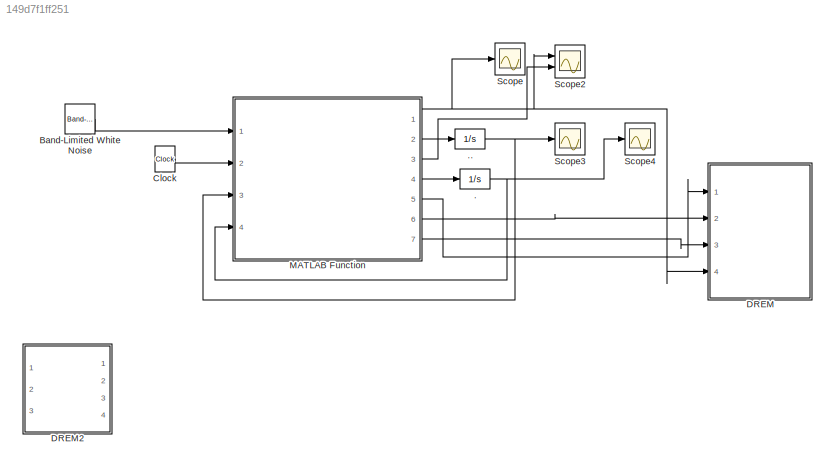
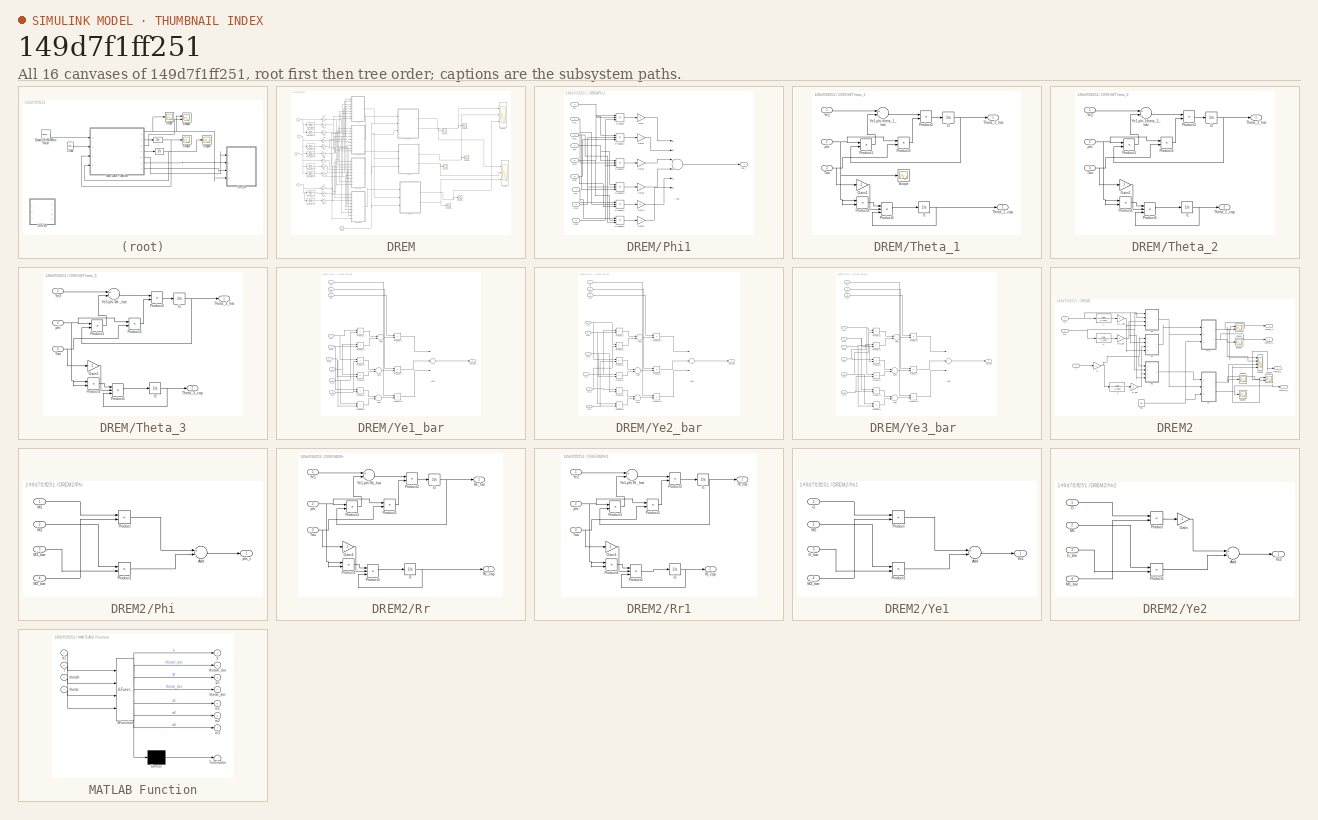
[diagram: thumbnail index - all 16 canvases of the model, root first then tree order]
MODEL slx_149d7f1ff251
KIND model
CONFIG AbsTol = auto
CONFIG EnableMultiTasking = off
CONFIG FixedStep = auto
CONFIG InitFcn = d1=1;\nd2=1;\nd3=3;\nd4=3;\ntau=1000000000000
CONFIG MaxStep = auto
CONFIG MinStep = auto
CONFIG RelTol = 1e-3
CONFIG SampleTimeConstraint = Unconstrained
CONFIG Solver = VariableStepAuto
CONFIG SolverName = VariableStepAuto
CONFIG StartTime = 0.0
CONFIG StopTime = 1000
BLOCK [Integrator] .
  InitialCondition = [1 2 3]
  Ports = [1, 1]
BLOCK [Integrator] ..
  Ports = [1, 1]
BLOCK [Reference] Band-Limited White Noise  REF=simulink/Sources/Band-Limited
White Noise
  Ports = [0, 1]
  SourceBlock = simulink/Sources/Band-Limited\nWhite Noise
  SourceType = Band-Limited White Noise.
BLOCK [Clock] Clock
  DisplayTime = on
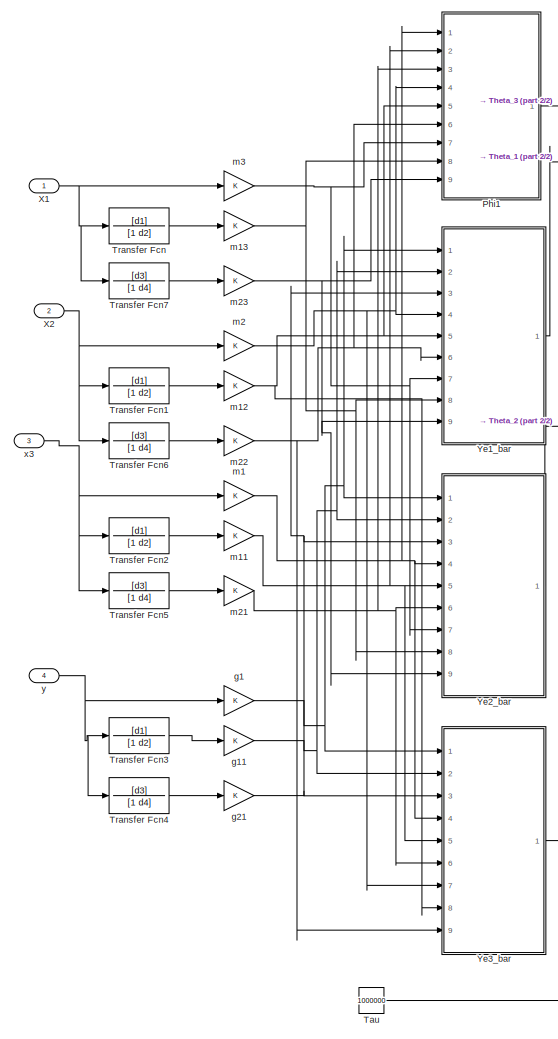
[diagram: DREM - part 1/2, left side, full height]
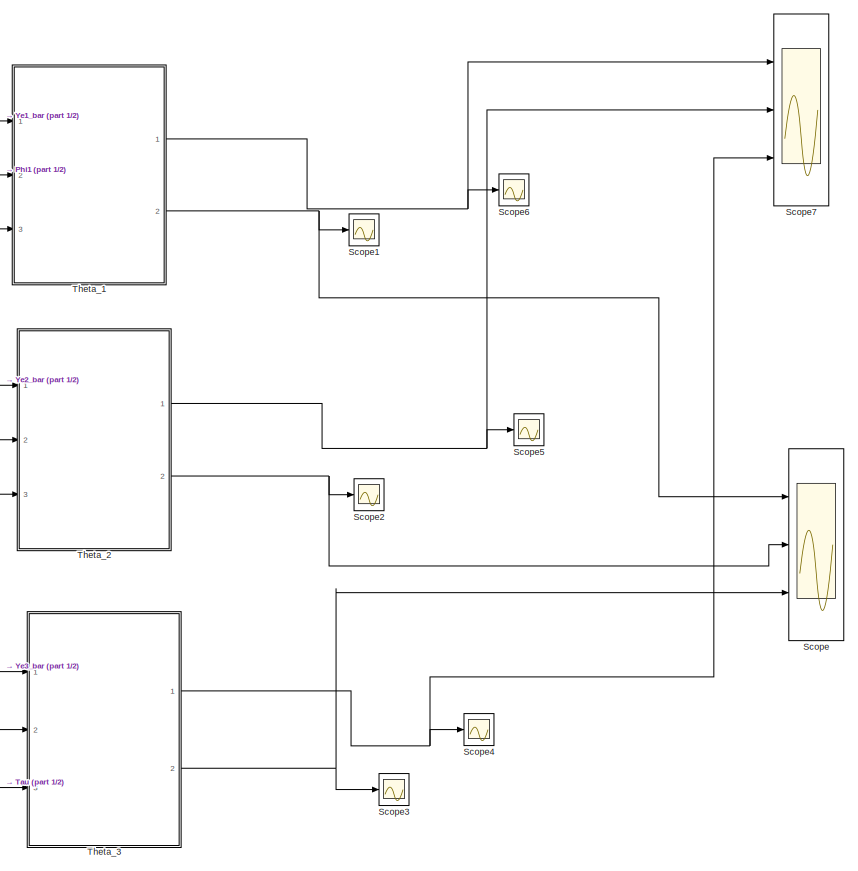
[diagram: DREM - part 2/2, right side, full height]
BLOCK [SubSystem] DREM
  Ports = [4]
  RequestExecContextInheritance = off
  Variant = off
BLOCK [SubSystem] DREM/Phi1
  Ports = [9, 1]
  RequestExecContextInheritance = off
  Variant = off
BLOCK [Sum] DREM/Phi1/Add
  InputSameDT = off
  Inputs = ++++++
  OutDataTypeStr = Inherit: Inherit via internal rule
  Ports = [6, 1]
  SaturateOnIntegerOverflow = off
BLOCK [Gain] DREM/Phi1/Gain
  OutDataTypeStr = Inherit: Inherit via internal rule
  ParamDataTypeStr = Inherit: Inherit via internal rule
  SaturateOnIntegerOverflow = off
BLOCK [Gain] DREM/Phi1/Gain1
  Gain = -1
  OutDataTypeStr = Inherit: Inherit via internal rule
  ParamDataTypeStr = Inherit: Inherit via internal rule
  SaturateOnIntegerOverflow = off
BLOCK [Gain] DREM/Phi1/Gain2
  Gain = -1
  OutDataTypeStr = Inherit: Inherit via internal rule
  ParamDataTypeStr = Inherit: Inherit via internal rule
  SaturateOnIntegerOverflow = off
BLOCK [Gain] DREM/Phi1/Gain3
  OutDataTypeStr = Inherit: Inherit via internal rule
  ParamDataTypeStr = Inherit: Inherit via internal rule
  SaturateOnIntegerOverflow = off
BLOCK [Gain] DREM/Phi1/Gain4
  OutDataTypeStr = Inherit: Inherit via internal rule
  ParamDataTypeStr = Inherit: Inherit via internal rule
  SaturateOnIntegerOverflow = off
BLOCK [Gain] DREM/Phi1/Gain5
  Gain = -1
  OutDataTypeStr = Inherit: Inherit via internal rule
  ParamDataTypeStr = Inherit: Inherit via internal rule
  SaturateOnIntegerOverflow = off
BLOCK [Product] DREM/Phi1/Product
  InputSameDT = off
  Inputs = 3
  OutDataTypeStr = Inherit: Inherit via internal rule
  Ports = [3, 1]
  RndMeth = Floor
  SaturateOnIntegerOverflow = off
BLOCK [Product] DREM/Phi1/Product1
  InputSameDT = off
  Inputs = 3
  OutDataTypeStr = Inherit: Inherit via internal rule
  Ports = [3, 1]
  RndMeth = Floor
  SaturateOnIntegerOverflow = off
BLOCK [Product] DREM/Phi1/Product2
  InputSameDT = off
  Inputs = 3
  OutDataTypeStr = Inherit: Inherit via internal rule
  Ports = [3, 1]
  RndMeth = Floor
  SaturateOnIntegerOverflow = off
BLOCK [Product] DREM/Phi1/Product3
  InputSameDT = off
  Inputs = 3
  OutDataTypeStr = Inherit: Inherit via internal rule
  Ports = [3, 1]
  RndMeth = Floor
  SaturateOnIntegerOverflow = off
BLOCK [Product] DREM/Phi1/Product4
  InputSameDT = off
  Inputs = 3
  OutDataTypeStr = Inherit: Inherit via internal rule
  Ports = [3, 1]
  RndMeth = Floor
  SaturateOnIntegerOverflow = off
BLOCK [Product] DREM/Phi1/Product5
  InputSameDT = off
  Inputs = 3
  OutDataTypeStr = Inherit: Inherit via internal rule
  Ports = [3, 1]
  RndMeth = Floor
  SaturateOnIntegerOverflow = off
BLOCK [Inport] DREM/Phi1/m1
  IconDisplay = Port number
BLOCK [Inport] DREM/Phi1/m11
  IconDisplay = Port number
  Port = 2
BLOCK [Inport] DREM/Phi1/m12
  IconDisplay = Port number
  Port = 5
BLOCK [Inport] DREM/Phi1/m13
  IconDisplay = Port number
  Port = 8
BLOCK [Inport] DREM/Phi1/m2
  IconDisplay = Port number
  Port = 4
BLOCK [Inport] DREM/Phi1/m21
  IconDisplay = Port number
  Port = 3
BLOCK [Inport] DREM/Phi1/m22
  IconDisplay = Port number
  Port = 6
BLOCK [Inport] DREM/Phi1/m23
  IconDisplay = Port number
  Port = 9
BLOCK [Inport] DREM/Phi1/m3
  IconDisplay = Port number
  Port = 7
BLOCK [Outport] DREM/Phi1/phi_t
  IconDisplay = Port number
BLOCK [Scope] DREM/Scope
  NumInputPorts = 3
  Ports = [3]
  ScopeSpecificationString = Simulink.scopes.TimeScopeBlockCfg('CurrentConfiguration', extmgr.ConfigurationSet(extmgr.Configuration('Core','General UI',true),extmgr.Configuration('Core','Source UI',true),extmgr.Configuration('Sources','WiredSimulink',true),extmgr.Configuration('Visuals','Time Domain',true,'SerializedDisplays',{struct('MinYLimReal','-1.25','MaxYLimReal','1.25','YLabelReal','','MinYLimMag','0.00000','MaxYLimMag...<+1433ch>
BLOCK [Scope] DREM/Scope1
  NumInputPorts = 1
  Ports = [1]
  ScopeSpecificationString = Simulink.scopes.TimeScopeBlockCfg('CurrentConfiguration', extmgr.ConfigurationSet(extmgr.Configuration('Core','General UI',true),extmgr.Configuration('Core','Source UI',true),extmgr.Configuration('Sources','WiredSimulink',true,'DataLoggingVariableName','ScopeData1'),extmgr.Configuration('Visuals','Time Domain',true,'SerializedDisplays',{struct('MinYLimReal','0.99999962','MaxYLimReal','1.00000004',...<+1490ch>
BLOCK [Scope] DREM/Scope2
  NumInputPorts = 1
  Ports = [1]
  ScopeSpecificationString = Simulink.scopes.TimeScopeBlockCfg('CurrentConfiguration', extmgr.ConfigurationSet(extmgr.Configuration('Core','General UI',true),extmgr.Configuration('Core','Source UI',true),extmgr.Configuration('Sources','WiredSimulink',true,'DataLoggingVariableName','ScopeData2'),extmgr.Configuration('Visuals','Time Domain',true,'SerializedDisplays',{struct('MinYLimReal','-1.00002','MaxYLimReal','-0.99985','YLa...<+1370ch>
BLOCK [Scope] DREM/Scope3
  NumInputPorts = 1
  Ports = [1]
  ScopeSpecificationString = Simulink.scopes.TimeScopeBlockCfg('CurrentConfiguration', extmgr.ConfigurationSet(extmgr.Configuration('Core','General UI',true),extmgr.Configuration('Core','Source UI',true),extmgr.Configuration('Sources','WiredSimulink',true,'DataLoggingVariableName','ScopeData3'),extmgr.Configuration('Visuals','Time Domain',true,'SerializedDisplays',{struct('MinYLimReal','-0.59753','MaxYLimReal','1.18275','YLab...<+1414ch>
BLOCK [Scope] DREM/Scope4
  NumInputPorts = 1
  Ports = [1]
  ScopeSpecificationString = Simulink.scopes.TimeScopeBlockCfg('CurrentConfiguration', extmgr.ConfigurationSet(extmgr.Configuration('Core','General UI',true),extmgr.Configuration('Core','Source UI',true),extmgr.Configuration('Sources','WiredSimulink',true,'DataLoggingVariableName','ScopeData1'),extmgr.Configuration('Visuals','Time Domain',true,'SerializedDisplays',{struct('MinYLimReal','-0.0625','MaxYLimReal','0.5625','YLabel...<+1482ch>
BLOCK [Scope] DREM/Scope5
  NumInputPorts = 1
  Ports = [1]
  ScopeSpecificationString = Simulink.scopes.TimeScopeBlockCfg('CurrentConfiguration', extmgr.ConfigurationSet(extmgr.Configuration('Core','General UI',true),extmgr.Configuration('Core','Source UI',true),extmgr.Configuration('Sources','WiredSimulink',true,'DataLoggingVariableName','ScopeData2'),extmgr.Configuration('Visuals','Time Domain',true,'SerializedDisplays',{struct('MinYLimReal','-1.1273','MaxYLimReal','0.12526','YLabe...<+1416ch>
BLOCK [Scope] DREM/Scope6
  NumInputPorts = 1
  Ports = [1]
  ScopeSpecificationString = Simulink.scopes.TimeScopeBlockCfg('CurrentConfiguration', extmgr.ConfigurationSet(extmgr.Configuration('Core','General UI',true),extmgr.Configuration('Core','Source UI',true),extmgr.Configuration('Sources','WiredSimulink',true,'DataLoggingVariableName','ScopeData3'),extmgr.Configuration('Visuals','Time Domain',true,'SerializedDisplays',{struct('MinYLimReal','-1.00000','MaxYLimReal','1.00000','YLab...<+1420ch>
BLOCK [Scope] DREM/Scope7
  NumInputPorts = 3
  Ports = [3]
  ScopeSpecificationString = Simulink.scopes.TimeScopeBlockCfg('CurrentConfiguration', extmgr.ConfigurationSet(extmgr.Configuration('Core','General UI',true),extmgr.Configuration('Core','Source UI',true),extmgr.Configuration('Sources','WiredSimulink',true,'DataLoggingVariableName','ScopeData1'),extmgr.Configuration('Visuals','Time Domain',true,'SerializedDisplays',{struct('MinYLimReal','-0.37549','MaxYLimReal','3.37938','YLab...<+1490ch>
BLOCK [Constant] DREM/Tau
  SampleTime = -1
  Value = 1000000
BLOCK [SubSystem] DREM/Theta_1
  Ports = [3, 2]
  RequestExecContextInheritance = off
  Variant = off
BLOCK [Gain] DREM/Theta_1/Gain1
  Gain = -1
  OutDataTypeStr = Inherit: Inherit via internal rule
  ParamDataTypeStr = Inherit: Inherit via internal rule
  SaturateOnIntegerOverflow = off
BLOCK [Integrator] DREM/Theta_1/I1
  InitialCondition = 1
  Ports = [1, 1]
BLOCK [Integrator] DREM/Theta_1/I2
  Ports = [1, 1]
BLOCK [Product] DREM/Theta_1/Product1
  InputSameDT = off
  OutDataTypeStr = Inherit: Inherit via internal rule
  Ports = [2, 1]
  RndMeth = Floor
  SaturateOnIntegerOverflow = off
BLOCK [Product] DREM/Theta_1/Product2
  InputSameDT = off
  OutDataTypeStr = Inherit: Inherit via internal rule
  Ports = [2, 1]
  RndMeth = Floor
  SaturateOnIntegerOverflow = off
BLOCK [Product] DREM/Theta_1/Product3
  InputSameDT = off
  OutDataTypeStr = Inherit: Inherit via internal rule
  Ports = [2, 1]
  RndMeth = Floor
  SaturateOnIntegerOverflow = off
BLOCK [Product] DREM/Theta_1/Product4
  InputSameDT = off
  OutDataTypeStr = Inherit: Inherit via internal rule
  Ports = [2, 1]
  RndMeth = Floor
  SaturateOnIntegerOverflow = off
BLOCK [Product] DREM/Theta_1/Product5
  InputSameDT = off
  Inputs = 3
  OutDataTypeStr = Inherit: Inherit via internal rule
  Ports = [3, 1]
  RndMeth = Floor
  SaturateOnIntegerOverflow = off
BLOCK [Scope] DREM/Theta_1/Scope
  NumInputPorts = 1
  Ports = [1]
  ScopeSpecificationString = Simulink.scopes.TimeScopeBlockCfg('CurrentConfiguration', extmgr.ConfigurationSet(extmgr.Configuration('Core','General UI',true),extmgr.Configuration('Core','Source UI',true),extmgr.Configuration('Sources','WiredSimulink',true,'DataLoggingVariableName','ScopeData13'),extmgr.Configuration('Visuals','Time Domain',true,'SerializedDisplays',{struct('MinYLimReal','-0.000002','MaxYLimReal','0.0000041','...<+1402ch>
BLOCK [Inport] DREM/Theta_1/Tau
  IconDisplay = Port number
  Port = 3
BLOCK [Outport] DREM/Theta_1/Theta_1_cap
  IconDisplay = Port number
  Port = 2
BLOCK [Outport] DREM/Theta_1/Theta_1_hat
  IconDisplay = Port number
BLOCK [Inport] DREM/Theta_1/Ye1
  IconDisplay = Port number
BLOCK [Sum] DREM/Theta_1/Ye1-phi.theta_1_hat
  InputSameDT = off
  Inputs = +-
  OutDataTypeStr = Inherit: Inherit via internal rule
  Ports = [2, 1]
  SaturateOnIntegerOverflow = off
BLOCK [Inport] DREM/Theta_1/phi
  IconDisplay = Port number
  Port = 2
BLOCK [SubSystem] DREM/Theta_2
  Ports = [3, 2]
  RequestExecContextInheritance = off
  Variant = off
BLOCK [Gain] DREM/Theta_2/Gain1
  Gain = -1
  OutDataTypeStr = Inherit: Inherit via internal rule
  ParamDataTypeStr = Inherit: Inherit via internal rule
  SaturateOnIntegerOverflow = off
BLOCK [Integrator] DREM/Theta_2/I1
  InitialCondition = -1
  Ports = [1, 1]
BLOCK [Integrator] DREM/Theta_2/I2
  Ports = [1, 1]
BLOCK [Product] DREM/Theta_2/Product1
  InputSameDT = off
  OutDataTypeStr = Inherit: Inherit via internal rule
  Ports = [2, 1]
  RndMeth = Floor
  SaturateOnIntegerOverflow = off
BLOCK [Product] DREM/Theta_2/Product2
  InputSameDT = off
  OutDataTypeStr = Inherit: Inherit via internal rule
  Ports = [2, 1]
  RndMeth = Floor
  SaturateOnIntegerOverflow = off
BLOCK [Product] DREM/Theta_2/Product3
  InputSameDT = off
  OutDataTypeStr = Inherit: Inherit via internal rule
  Ports = [2, 1]
  RndMeth = Floor
  SaturateOnIntegerOverflow = off
BLOCK [Product] DREM/Theta_2/Product4
  InputSameDT = off
  OutDataTypeStr = Inherit: Inherit via internal rule
  Ports = [2, 1]
  RndMeth = Floor
  SaturateOnIntegerOverflow = off
BLOCK [Product] DREM/Theta_2/Product5
  InputSameDT = off
  Inputs = 3
  OutDataTypeStr = Inherit: Inherit via internal rule
  Ports = [3, 1]
  RndMeth = Floor
  SaturateOnIntegerOverflow = off
BLOCK [Inport] DREM/Theta_2/Tau
  IconDisplay = Port number
  Port = 3
BLOCK [Outport] DREM/Theta_2/Theta_2_cap
  IconDisplay = Port number
  Port = 2
BLOCK [Outport] DREM/Theta_2/Theta_2_hat
  IconDisplay = Port number
BLOCK [Sum] DREM/Theta_2/Ye1-phi.1theta_2_hat
  InputSameDT = off
  Inputs = +-
  OutDataTypeStr = Inherit: Inherit via internal rule
  Ports = [2, 1]
  SaturateOnIntegerOverflow = off
BLOCK [Inport] DREM/Theta_2/Ye2
  IconDisplay = Port number
BLOCK [Inport] DREM/Theta_2/phi
  IconDisplay = Port number
  Port = 2
BLOCK [SubSystem] DREM/Theta_3
  Ports = [3, 2]
  RequestExecContextInheritance = off
  Variant = off
BLOCK [Gain] DREM/Theta_3/Gain1
  Gain = -1
  OutDataTypeStr = Inherit: Inherit via internal rule
  ParamDataTypeStr = Inherit: Inherit via internal rule
  SaturateOnIntegerOverflow = off
BLOCK [Integrator] DREM/Theta_3/I1
  Ports = [1, 1]
BLOCK [Integrator] DREM/Theta_3/I2
  InitialCondition = 0.5
  Ports = [1, 1]
BLOCK [Product] DREM/Theta_3/Product1
  InputSameDT = off
  OutDataTypeStr = Inherit: Inherit via internal rule
  Ports = [2, 1]
  RndMeth = Floor
  SaturateOnIntegerOverflow = off
BLOCK [Product] DREM/Theta_3/Product2
  InputSameDT = off
  OutDataTypeStr = Inherit: Inherit via internal rule
  Ports = [2, 1]
  RndMeth = Floor
  SaturateOnIntegerOverflow = off
BLOCK [Product] DREM/Theta_3/Product3
  InputSameDT = off
  OutDataTypeStr = Inherit: Inherit via internal rule
  Ports = [2, 1]
  RndMeth = Floor
  SaturateOnIntegerOverflow = off
BLOCK [Product] DREM/Theta_3/Product4
  InputSameDT = off
  OutDataTypeStr = Inherit: Inherit via internal rule
  Ports = [2, 1]
  RndMeth = Floor
  SaturateOnIntegerOverflow = off
BLOCK [Product] DREM/Theta_3/Product5
  InputSameDT = off
  Inputs = 3
  OutDataTypeStr = Inherit: Inherit via internal rule
  Ports = [3, 1]
  RndMeth = Floor
  SaturateOnIntegerOverflow = off
BLOCK [Inport] DREM/Theta_3/Tau
  IconDisplay = Port number
  Port = 3
BLOCK [Outport] DREM/Theta_3/Theta_3_cap
  IconDisplay = Port number
  Port = 2
BLOCK [Outport] DREM/Theta_3/Theta_3_hat
  IconDisplay = Port number
BLOCK [Inport] DREM/Theta_3/Ye3
  IconDisplay = Port number
BLOCK [Sum] DREM/Theta_3/Ye3-phi.Wr  _hat
  InputSameDT = off
  Inputs = +-
  OutDataTypeStr = Inherit: Inherit via internal rule
  Ports = [2, 1]
  SaturateOnIntegerOverflow = off
BLOCK [Inport] DREM/Theta_3/phi
  IconDisplay = Port number
  Port = 2
BLOCK [TransferFcn] DREM/Transfer Fcn
  Denominator = [1 d2]
  Numerator = [d1]
BLOCK [TransferFcn] DREM/Transfer Fcn1
  Denominator = [1 d2]
  Numerator = [d1]
BLOCK [TransferFcn] DREM/Transfer Fcn2
  Denominator = [1 d2]
  Numerator = [d1]
BLOCK [TransferFcn] DREM/Transfer Fcn3
  Denominator = [1 d2]
  Numerator = [d1]
BLOCK [TransferFcn] DREM/Transfer Fcn4
  Denominator = [1 d4]
  Numerator = [d3]
BLOCK [TransferFcn] DREM/Transfer Fcn5
  Denominator = [1 d4]
  Numerator = [d3]
BLOCK [TransferFcn] DREM/Transfer Fcn6
  Denominator = [1 d4]
  Numerator = [d3]
BLOCK [TransferFcn] DREM/Transfer Fcn7
  Denominator = [1 d4]
  Numerator = [d3]
BLOCK [Inport] DREM/X1
  IconDisplay = Port number
BLOCK [Inport] DREM/X2
  IconDisplay = Port number
  Port = 2
BLOCK [SubSystem] DREM/Ye1_bar
  Ports = [9, 1]
  RequestExecContextInheritance = off
  Variant = off
BLOCK [Sum] DREM/Ye1_bar/Add1
  InputSameDT = off
  Inputs = +-
  OutDataTypeStr = Inherit: Inherit via internal rule
  Ports = [2, 1]
  SaturateOnIntegerOverflow = off
BLOCK [Sum] DREM/Ye1_bar/Add2
  InputSameDT = off
  Inputs = +++
  OutDataTypeStr = Inherit: Inherit via internal rule
  Ports = [3, 1]
  SaturateOnIntegerOverflow = off
BLOCK [Sum] DREM/Ye1_bar/Add3
  InputSameDT = off
  Inputs = -+
  OutDataTypeStr = Inherit: Inherit via internal rule
  Ports = [2, 1]
  SaturateOnIntegerOverflow = off
BLOCK [Sum] DREM/Ye1_bar/Add4
  InputSameDT = off
  Inputs = +-
  OutDataTypeStr = Inherit: Inherit via internal rule
  Ports = [2, 1]
  SaturateOnIntegerOverflow = off
BLOCK [Product] DREM/Ye1_bar/Product10
  InputSameDT = off
  OutDataTypeStr = Inherit: Inherit via internal rule
  Ports = [2, 1]
  RndMeth = Floor
  SaturateOnIntegerOverflow = off
BLOCK [Product] DREM/Ye1_bar/Product2
  InputSameDT = off
  OutDataTypeStr = Inherit: Inherit via internal rule
  Ports = [2, 1]
  RndMeth = Floor
  SaturateOnIntegerOverflow = off
BLOCK [Product] DREM/Ye1_bar/Product3
  InputSameDT = off
  OutDataTypeStr = Inherit: Inherit via internal rule
  Ports = [2, 1]
  RndMeth = Floor
  SaturateOnIntegerOverflow = off
BLOCK [Product] DREM/Ye1_bar/Product4
  InputSameDT = off
  OutDataTypeStr = Inherit: Inherit via internal rule
  Ports = [2, 1]
  RndMeth = Floor
  SaturateOnIntegerOverflow = off
BLOCK [Product] DREM/Ye1_bar/Product5
  InputSameDT = off
  OutDataTypeStr = Inherit: Inherit via internal rule
  Ports = [2, 1]
  RndMeth = Floor
  SaturateOnIntegerOverflow = off
BLOCK [Product] DREM/Ye1_bar/Product6
  InputSameDT = off
  OutDataTypeStr = Inherit: Inherit via internal rule
  Ports = [2, 1]
  RndMeth = Floor
  SaturateOnIntegerOverflow = off
BLOCK [Product] DREM/Ye1_bar/Product7
  InputSameDT = off
  OutDataTypeStr = Inherit: Inherit via internal rule
  Ports = [2, 1]
  RndMeth = Floor
  SaturateOnIntegerOverflow = off
BLOCK [Product] DREM/Ye1_bar/Product8
  InputSameDT = off
  OutDataTypeStr = Inherit: Inherit via internal rule
  Ports = [2, 1]
  RndMeth = Floor
  SaturateOnIntegerOverflow = off
BLOCK [Product] DREM/Ye1_bar/Product9
  InputSameDT = off
  OutDataTypeStr = Inherit: Inherit via internal rule
  Ports = [2, 1]
  RndMeth = Floor
  SaturateOnIntegerOverflow = off
BLOCK [Outport] DREM/Ye1_bar/Ye1_bar
  IconDisplay = Port number
BLOCK [Inport] DREM/Ye1_bar/g1
  IconDisplay = Port number
BLOCK [Inport] DREM/Ye1_bar/g11
  IconDisplay = Port number
  Port = 2
BLOCK [Inport] DREM/Ye1_bar/g21
  IconDisplay = Port number
  Port = 3
BLOCK [Inport] DREM/Ye1_bar/m12
  IconDisplay = Port number
  Port = 5
BLOCK [Inport] DREM/Ye1_bar/m13
  IconDisplay = Port number
  Port = 8
BLOCK [Inport] DREM/Ye1_bar/m2
  IconDisplay = Port number
  Port = 4
BLOCK [Inport] DREM/Ye1_bar/m22
  IconDisplay = Port number
  Port = 6
BLOCK [Inport] DREM/Ye1_bar/m23
  IconDisplay = Port number
  Port = 9
BLOCK [Inport] DREM/Ye1_bar/m3
  IconDisplay = Port number
  Port = 7
BLOCK [SubSystem] DREM/Ye2_bar
  Ports = [9, 1]
  RequestExecContextInheritance = off
  Variant = off
BLOCK [Sum] DREM/Ye2_bar/Add1
  InputSameDT = off
  Inputs = +-
  OutDataTypeStr = Inherit: Inherit via internal rule
  Ports = [2, 1]
  SaturateOnIntegerOverflow = off
BLOCK [Sum] DREM/Ye2_bar/Add2
  InputSameDT = off
  Inputs = +++
  OutDataTypeStr = Inherit: Inherit via internal rule
  Ports = [3, 1]
  SaturateOnIntegerOverflow = off
BLOCK [Sum] DREM/Ye2_bar/Add3
  InputSameDT = off
  Inputs = +-
  OutDataTypeStr = Inherit: Inherit via internal rule
  Ports = [2, 1]
  SaturateOnIntegerOverflow = off
BLOCK [Sum] DREM/Ye2_bar/Add4
  InputSameDT = off
  Inputs = +-
  OutDataTypeStr = Inherit: Inherit via internal rule
  Ports = [2, 1]
  SaturateOnIntegerOverflow = off
BLOCK [Product] DREM/Ye2_bar/Product10
  InputSameDT = off
  OutDataTypeStr = Inherit: Inherit via internal rule
  Ports = [2, 1]
  RndMeth = Floor
  SaturateOnIntegerOverflow = off
BLOCK [Product] DREM/Ye2_bar/Product2
  InputSameDT = off
  OutDataTypeStr = Inherit: Inherit via internal rule
  Ports = [2, 1]
  RndMeth = Floor
  SaturateOnIntegerOverflow = off
BLOCK [Product] DREM/Ye2_bar/Product3
  InputSameDT = off
  OutDataTypeStr = Inherit: Inherit via internal rule
  Ports = [2, 1]
  RndMeth = Floor
  SaturateOnIntegerOverflow = off
BLOCK [Product] DREM/Ye2_bar/Product4
  InputSameDT = off
  OutDataTypeStr = Inherit: Inherit via internal rule
  Ports = [2, 1]
  RndMeth = Floor
  SaturateOnIntegerOverflow = off
BLOCK [Product] DREM/Ye2_bar/Product5
  InputSameDT = off
  OutDataTypeStr = Inherit: Inherit via internal rule
  Ports = [2, 1]
  RndMeth = Floor
  SaturateOnIntegerOverflow = off
BLOCK [Product] DREM/Ye2_bar/Product6
  InputSameDT = off
  OutDataTypeStr = Inherit: Inherit via internal rule
  Ports = [2, 1]
  RndMeth = Floor
  SaturateOnIntegerOverflow = off
BLOCK [Product] DREM/Ye2_bar/Product7
  InputSameDT = off
  OutDataTypeStr = Inherit: Inherit via internal rule
  Ports = [2, 1]
  RndMeth = Floor
  SaturateOnIntegerOverflow = off
BLOCK [Product] DREM/Ye2_bar/Product8
  InputSameDT = off
  OutDataTypeStr = Inherit: Inherit via internal rule
  Ports = [2, 1]
  RndMeth = Floor
  SaturateOnIntegerOverflow = off
BLOCK [Product] DREM/Ye2_bar/Product9
  InputSameDT = off
  OutDataTypeStr = Inherit: Inherit via internal rule
  Ports = [2, 1]
  RndMeth = Floor
  SaturateOnIntegerOverflow = off
BLOCK [Outport] DREM/Ye2_bar/Ye2_bar
  IconDisplay = Port number
BLOCK [Inport] DREM/Ye2_bar/g1
  IconDisplay = Port number
BLOCK [Inport] DREM/Ye2_bar/g11
  IconDisplay = Port number
  Port = 2
BLOCK [Inport] DREM/Ye2_bar/g21
  IconDisplay = Port number
  Port = 3
BLOCK [Inport] DREM/Ye2_bar/m1
  IconDisplay = Port number
  Port = 4
BLOCK [Inport] DREM/Ye2_bar/m11
  IconDisplay = Port number
  Port = 5
BLOCK [Inport] DREM/Ye2_bar/m13
  IconDisplay = Port number
  Port = 8
BLOCK [Inport] DREM/Ye2_bar/m21
  IconDisplay = Port number
  Port = 6
BLOCK [Inport] DREM/Ye2_bar/m23
  IconDisplay = Port number
  Port = 9
BLOCK [Inport] DREM/Ye2_bar/m3
  IconDisplay = Port number
  Port = 7
BLOCK [SubSystem] DREM/Ye3_bar 
  Ports = [9, 1]
  RequestExecContextInheritance = off
  Variant = off
BLOCK [Sum] DREM/Ye3_bar /Add1
  InputSameDT = off
  Inputs = +-
  OutDataTypeStr = Inherit: Inherit via internal rule
  Ports = [2, 1]
  SaturateOnIntegerOverflow = off
BLOCK [Sum] DREM/Ye3_bar /Add2
  InputSameDT = off
  Inputs = +++
  OutDataTypeStr = Inherit: Inherit via internal rule
  Ports = [3, 1]
  SaturateOnIntegerOverflow = off
BLOCK [Sum] DREM/Ye3_bar /Add3
  InputSameDT = off
  Inputs = +-
  OutDataTypeStr = Inherit: Inherit via internal rule
  Ports = [2, 1]
  SaturateOnIntegerOverflow = off
BLOCK [Sum] DREM/Ye3_bar /Add4
  InputSameDT = off
  Inputs = +-
  OutDataTypeStr = Inherit: Inherit via internal rule
  Ports = [2, 1]
  SaturateOnIntegerOverflow = off
BLOCK [Product] DREM/Ye3_bar /Product10
  InputSameDT = off
  OutDataTypeStr = Inherit: Inherit via internal rule
  Ports = [2, 1]
  RndMeth = Floor
  SaturateOnIntegerOverflow = off
BLOCK [Product] DREM/Ye3_bar /Product2
  InputSameDT = off
  OutDataTypeStr = Inherit: Inherit via internal rule
  Ports = [2, 1]
  RndMeth = Floor
  SaturateOnIntegerOverflow = off
BLOCK [Product] DREM/Ye3_bar /Product3
  InputSameDT = off
  OutDataTypeStr = Inherit: Inherit via internal rule
  Ports = [2, 1]
  RndMeth = Floor
  SaturateOnIntegerOverflow = off
BLOCK [Product] DREM/Ye3_bar /Product4
  InputSameDT = off
  OutDataTypeStr = Inherit: Inherit via internal rule
  Ports = [2, 1]
  RndMeth = Floor
  SaturateOnIntegerOverflow = off
BLOCK [Product] DREM/Ye3_bar /Product5
  InputSameDT = off
  OutDataTypeStr = Inherit: Inherit via internal rule
  Ports = [2, 1]
  RndMeth = Floor
  SaturateOnIntegerOverflow = off
BLOCK [Product] DREM/Ye3_bar /Product6
  InputSameDT = off
  OutDataTypeStr = Inherit: Inherit via internal rule
  Ports = [2, 1]
  RndMeth = Floor
  SaturateOnIntegerOverflow = off
BLOCK [Product] DREM/Ye3_bar /Product7
  InputSameDT = off
  OutDataTypeStr = Inherit: Inherit via internal rule
  Ports = [2, 1]
  RndMeth = Floor
  SaturateOnIntegerOverflow = off
BLOCK [Product] DREM/Ye3_bar /Product8
  InputSameDT = off
  OutDataTypeStr = Inherit: Inherit via internal rule
  Ports = [2, 1]
  RndMeth = Floor
  SaturateOnIntegerOverflow = off
BLOCK [Product] DREM/Ye3_bar /Product9
  InputSameDT = off
  OutDataTypeStr = Inherit: Inherit via internal rule
  Ports = [2, 1]
  RndMeth = Floor
  SaturateOnIntegerOverflow = off
BLOCK [Outport] DREM/Ye3_bar /Ye3_bar
  IconDisplay = Port number
BLOCK [Inport] DREM/Ye3_bar /g1
  IconDisplay = Port number
BLOCK [Inport] DREM/Ye3_bar /g11
  IconDisplay = Port number
  Port = 2
BLOCK [Inport] DREM/Ye3_bar /g21
  IconDisplay = Port number
  Port = 3
BLOCK [Inport] DREM/Ye3_bar /m1
  IconDisplay = Port number
  Port = 4
BLOCK [Inport] DREM/Ye3_bar /m11
  IconDisplay = Port number
  Port = 5
BLOCK [Inport] DREM/Ye3_bar /m12
  IconDisplay = Port number
  Port = 8
BLOCK [Inport] DREM/Ye3_bar /m2
  IconDisplay = Port number
  Port = 7
BLOCK [Inport] DREM/Ye3_bar /m21
  IconDisplay = Port number
  Port = 6
BLOCK [Inport] DREM/Ye3_bar /m22
  IconDisplay = Port number
  Port = 9
BLOCK [Gain] DREM/g1
  OutDataTypeStr = Inherit: Inherit via internal rule
  ParamDataTypeStr = Inherit: Inherit via internal rule
  SaturateOnIntegerOverflow = off
BLOCK [Gain] DREM/g11
  OutDataTypeStr = Inherit: Inherit via internal rule
  ParamDataTypeStr = Inherit: Inherit via internal rule
  SaturateOnIntegerOverflow = off
BLOCK [Gain] DREM/g21
  OutDataTypeStr = Inherit: Inherit via internal rule
  ParamDataTypeStr = Inherit: Inherit via internal rule
  SaturateOnIntegerOverflow = off
BLOCK [Gain] DREM/m1
  OutDataTypeStr = Inherit: Inherit via internal rule
  ParamDataTypeStr = Inherit: Inherit via internal rule
  SaturateOnIntegerOverflow = off
BLOCK [Gain] DREM/m11
  OutDataTypeStr = Inherit: Inherit via internal rule
  ParamDataTypeStr = Inherit: Inherit via internal rule
  SaturateOnIntegerOverflow = off
BLOCK [Gain] DREM/m12
  OutDataTypeStr = Inherit: Inherit via internal rule
  ParamDataTypeStr = Inherit: Inherit via internal rule
  SaturateOnIntegerOverflow = off
BLOCK [Gain] DREM/m13
  OutDataTypeStr = Inherit: Inherit via internal rule
  ParamDataTypeStr = Inherit: Inherit via internal rule
  SaturateOnIntegerOverflow = off
BLOCK [Gain] DREM/m2
  OutDataTypeStr = Inherit: Inherit via internal rule
  ParamDataTypeStr = Inherit: Inherit via internal rule
  SaturateOnIntegerOverflow = off
BLOCK [Gain] DREM/m21
  OutDataTypeStr = Inherit: Inherit via internal rule
  ParamDataTypeStr = Inherit: Inherit via internal rule
  SaturateOnIntegerOverflow = off
BLOCK [Gain] DREM/m22
  OutDataTypeStr = Inherit: Inherit via internal rule
  ParamDataTypeStr = Inherit: Inherit via internal rule
  SaturateOnIntegerOverflow = off
BLOCK [Gain] DREM/m23
  OutDataTypeStr = Inherit: Inherit via internal rule
  ParamDataTypeStr = Inherit: Inherit via internal rule
  SaturateOnIntegerOverflow = off
BLOCK [Gain] DREM/m3
  OutDataTypeStr = Inherit: Inherit via internal rule
  ParamDataTypeStr = Inherit: Inherit via internal rule
  SaturateOnIntegerOverflow = off
BLOCK [Inport] DREM/x3
  IconDisplay = Port number
  Port = 3
BLOCK [Inport] DREM/y
  IconDisplay = Port number
  Port = 4
BLOCK [SubSystem] DREM2
  Commented = on
  Ports = [3, 4]
  RequestExecContextInheritance = off
  Variant = off
BLOCK [TransferFcn] DREM2/.1
  Denominator = [1 d10]
  Numerator = [d9]
BLOCK [TransferFcn] DREM2/.2
  Denominator = [1 d10]
  Numerator = [d9]
BLOCK [TransferFcn] DREM2/.3
  Denominator = [1 d10]
  Numerator = [d9]
BLOCK [Gain] DREM2/G
  OutDataTypeStr = Inherit: Inherit via internal rule
  ParamDataTypeStr = Inherit: Inherit via internal rule
  SaturateOnIntegerOverflow = off
BLOCK [Gain] DREM2/G_bar
  OutDataTypeStr = Inherit: Inherit via internal rule
  ParamDataTypeStr = Inherit: Inherit via internal rule
  SaturateOnIntegerOverflow = off
BLOCK [Gain] DREM2/M1._bar
  OutDataTypeStr = Inherit: Inherit via internal rule
  ParamDataTypeStr = Inherit: Inherit via internal rule
  SaturateOnIntegerOverflow = off
BLOCK [Gain] DREM2/M2_bar
  OutDataTypeStr = Inherit: Inherit via internal rule
  ParamDataTypeStr = Inherit: Inherit via internal rule
  SaturateOnIntegerOverflow = off
BLOCK [SubSystem] DREM2/Phi
  Ports = [4, 1]
  RequestExecContextInheritance = off
  Variant = off
BLOCK [Sum] DREM2/Phi/Add
  InputSameDT = off
  Inputs = +-
  OutDataTypeStr = Inherit: Inherit via internal rule
  Ports = [2, 1]
  SaturateOnIntegerOverflow = off
BLOCK [Inport] DREM2/Phi/M1
  IconDisplay = Port number
BLOCK [Inport] DREM2/Phi/M1_bar
  IconDisplay = Port number
  Port = 3
BLOCK [Inport] DREM2/Phi/M2
  IconDisplay = Port number
  Port = 2
BLOCK [Inport] DREM2/Phi/M2_bar
  IconDisplay = Port number
  Port = 4
BLOCK [Product] DREM2/Phi/Product
  InputSameDT = off
  OutDataTypeStr = Inherit: Inherit via internal rule
  Ports = [2, 1]
  RndMeth = Floor
  SaturateOnIntegerOverflow = off
BLOCK [Product] DREM2/Phi/Product1
  InputSameDT = off
  OutDataTypeStr = Inherit: Inherit via internal rule
  Ports = [2, 1]
  RndMeth = Floor
  SaturateOnIntegerOverflow = off
BLOCK [Outport] DREM2/Phi/phi_t
  IconDisplay = Port number
BLOCK [SubSystem] DREM2/Rr
  Ports = [3, 2]
  RequestExecContextInheritance = off
  Variant = off
BLOCK [Gain] DREM2/Rr/Gain1
  Gain = -1
  OutDataTypeStr = Inherit: Inherit via internal rule
  ParamDataTypeStr = Inherit: Inherit via internal rule
  SaturateOnIntegerOverflow = off
BLOCK [Integrator] DREM2/Rr/I1
  InitialCondition = -3
  Ports = [1, 1]
BLOCK [Integrator] DREM2/Rr/I2
  InitialCondition = 0.1
  Ports = [1, 1]
BLOCK [Product] DREM2/Rr/Product1
  InputSameDT = off
  OutDataTypeStr = Inherit: Inherit via internal rule
  Ports = [2, 1]
  RndMeth = Floor
  SaturateOnIntegerOverflow = off
BLOCK [Product] DREM2/Rr/Product2
  InputSameDT = off
  OutDataTypeStr = Inherit: Inherit via internal rule
  Ports = [2, 1]
  RndMeth = Floor
  SaturateOnIntegerOverflow = off
BLOCK [Product] DREM2/Rr/Product3
  InputSameDT = off
  OutDataTypeStr = Inherit: Inherit via internal rule
  Ports = [2, 1]
  RndMeth = Floor
  SaturateOnIntegerOverflow = off
BLOCK [Product] DREM2/Rr/Product4
  InputSameDT = off
  OutDataTypeStr = Inherit: Inherit via internal rule
  Ports = [2, 1]
  RndMeth = Floor
  SaturateOnIntegerOverflow = off
BLOCK [Product] DREM2/Rr/Product5
  InputSameDT = off
  Inputs = 3
  OutDataTypeStr = Inherit: Inherit via internal rule
  Ports = [3, 1]
  RndMeth = Floor
  SaturateOnIntegerOverflow = off
BLOCK [Outport] DREM2/Rr/Rs_cap
  IconDisplay = Port number
  Port = 2
BLOCK [Outport] DREM2/Rr/Rs_hat
  IconDisplay = Port number
BLOCK [Inport] DREM2/Rr/Tau
  IconDisplay = Port number
  Port = 3
BLOCK [Inport] DREM2/Rr/Ye1
  IconDisplay = Port number
BLOCK [Sum] DREM2/Rr/Ye1-phi.Rs_hat
  InputSameDT = off
  Inputs = +-
  OutDataTypeStr = Inherit: Inherit via internal rule
  Ports = [2, 1]
  SaturateOnIntegerOverflow = off
BLOCK [Inport] DREM2/Rr/phi
  IconDisplay = Port number
  Port = 2
BLOCK [SubSystem] DREM2/Rr1
  Ports = [3, 2]
  RequestExecContextInheritance = off
  Variant = off
BLOCK [Gain] DREM2/Rr1/Gain1
  Gain = -1
  OutDataTypeStr = Inherit: Inherit via internal rule
  ParamDataTypeStr = Inherit: Inherit via internal rule
  SaturateOnIntegerOverflow = off
BLOCK [Integrator] DREM2/Rr1/I1
  Ports = [1, 1]
BLOCK [Integrator] DREM2/Rr1/I2
  InitialCondition = 3
  Ports = [1, 1]
BLOCK [Product] DREM2/Rr1/Product1
  InputSameDT = off
  OutDataTypeStr = Inherit: Inherit via internal rule
  Ports = [2, 1]
  RndMeth = Floor
  SaturateOnIntegerOverflow = off
BLOCK [Product] DREM2/Rr1/Product2
  InputSameDT = off
  OutDataTypeStr = Inherit: Inherit via internal rule
  Ports = [2, 1]
  RndMeth = Floor
  SaturateOnIntegerOverflow = off
BLOCK [Product] DREM2/Rr1/Product3
  InputSameDT = off
  OutDataTypeStr = Inherit: Inherit via internal rule
  Ports = [2, 1]
  RndMeth = Floor
  SaturateOnIntegerOverflow = off
BLOCK [Product] DREM2/Rr1/Product4
  InputSameDT = off
  OutDataTypeStr = Inherit: Inherit via internal rule
  Ports = [2, 1]
  RndMeth = Floor
  SaturateOnIntegerOverflow = off
BLOCK [Product] DREM2/Rr1/Product5
  InputSameDT = off
  Inputs = 3
  OutDataTypeStr = Inherit: Inherit via internal rule
  Ports = [3, 1]
  RndMeth = Floor
  SaturateOnIntegerOverflow = off
BLOCK [Outport] DREM2/Rr1/Rr_cap
  IconDisplay = Port number
  Port = 2
BLOCK [Outport] DREM2/Rr1/Rr_hat
  IconDisplay = Port number
BLOCK [Inport] DREM2/Rr1/Tau
  IconDisplay = Port number
  Port = 3
BLOCK [Sum] DREM2/Rr1/Ye1-phi.Rr _hat
  InputSameDT = off
  Inputs = +-
  OutDataTypeStr = Inherit: Inherit via internal rule
  Ports = [2, 1]
  SaturateOnIntegerOverflow = off
BLOCK [Inport] DREM2/Rr1/Ye2
  IconDisplay = Port number
BLOCK [Inport] DREM2/Rr1/phi
  IconDisplay = Port number
  Port = 2
BLOCK [Scope] DREM2/Scope1
  NumInputPorts = 1
  Ports = [1]
  ScopeSpecificationString = Simulink.scopes.TimeScopeBlockCfg('CurrentConfiguration', extmgr.ConfigurationSet(extmgr.Configuration('Core','General UI',true),extmgr.Configuration('Core','Source UI',true),extmgr.Configuration('Sources','WiredSimulink',true,'DataLoggingVariableName','ScopeData1'),extmgr.Configuration('Visuals','Time Domain',true,'SerializedDisplays',{struct('MinYLimReal','-0.89342','MaxYLimReal','8.09927','YLab...<+1435ch>
BLOCK [Scope] DREM2/Scope2
  NumInputPorts = 1
  Ports = [1]
  ScopeSpecificationString = Simulink.scopes.TimeScopeBlockCfg('CurrentConfiguration', extmgr.ConfigurationSet(extmgr.Configuration('Core','General UI',true),extmgr.Configuration('Core','Source UI',true),extmgr.Configuration('Sources','WiredSimulink',true,'DataLoggingVariableName','ScopeData2'),extmgr.Configuration('Visuals','Time Domain',true,'SerializedDisplays',{struct('MinYLimReal','-9.90012','MaxYLimReal','-9.74207','YLa...<+1463ch>
BLOCK [Scope] DREM2/Scope3
  NumInputPorts = 2
  Ports = [2]
  ScopeSpecificationString = Simulink.scopes.TimeScopeBlockCfg('CurrentConfiguration', extmgr.ConfigurationSet(extmgr.Configuration('Core','General UI',true),extmgr.Configuration('Core','Source UI',true),extmgr.Configuration('Sources','WiredSimulink',true,'DataLoggingVariableName','ScopeData2'),extmgr.Configuration('Visuals','Time Domain',true,'SerializedDisplays',{struct('MinYLimReal','-112.5','MaxYLimReal','12.5','YLabelRea...<+1458ch>
BLOCK [Scope] DREM2/Scope4
  NumInputPorts = 1
  Ports = [1]
  ScopeSpecificationString = Simulink.scopes.TimeScopeBlockCfg('CurrentConfiguration', extmgr.ConfigurationSet(extmgr.Configuration('Core','General UI',true),extmgr.Configuration('Core','Source UI',true),extmgr.Configuration('Sources','WiredSimulink',true,'DataLoggingVariableName','ScopeData3'),extmgr.Configuration('Visuals','Time Domain',true,'SerializedDisplays',{struct('MinYLimReal','-0.01138','MaxYLimReal','0.10315','YLab...<+1434ch>
BLOCK [Scope] DREM2/Scope5
  NumInputPorts = 4
  Ports = [4]
  ScopeSpecificationString = Simulink.scopes.TimeScopeBlockCfg('CurrentConfiguration', extmgr.ConfigurationSet(extmgr.Configuration('Core','General UI',true),extmgr.Configuration('Core','Source UI',true),extmgr.Configuration('Sources','WiredSimulink',true,'DataLoggingVariableName','ScopeData1'),extmgr.Configuration('Visuals','Time Domain',true,'SerializedDisplays',{struct('MinYLimReal','-0.00546','MaxYLimReal','0.01299','YLab...<+1484ch>
BLOCK [Scope] DREM2/Scope6
  NumInputPorts = 2
  Ports = [2]
  ScopeSpecificationString = Simulink.scopes.TimeScopeBlockCfg('CurrentConfiguration', extmgr.ConfigurationSet(extmgr.Configuration('Core','General UI',true),extmgr.Configuration('Core','Source UI',true),extmgr.Configuration('Sources','WiredSimulink',true,'DataLoggingVariableName','ScopeData1'),extmgr.Configuration('Visuals','Time Domain',true,'SerializedDisplays',{struct('MinYLimReal','-0.01146','MaxYLimReal','0.10316','YLab...<+1468ch>
BLOCK [Constant] DREM2/Tau
  SampleTime = -1
  Value = tau
BLOCK [Inport] DREM2/Y
  IconDisplay = Port number
  Port = 3
BLOCK [SubSystem] DREM2/Ye1
  Ports = [4, 1]
  RequestExecContextInheritance = off
  Variant = off
BLOCK [Sum] DREM2/Ye1/Add
  InputSameDT = off
  Inputs = +-
  OutDataTypeStr = Inherit: Inherit via internal rule
  Ports = [2, 1]
  SaturateOnIntegerOverflow = off
BLOCK [Inport] DREM2/Ye1/G
  IconDisplay = Port number
BLOCK [Inport] DREM2/Ye1/G_bar
  IconDisplay = Port number
  Port = 3
BLOCK [Inport] DREM2/Ye1/M2
  IconDisplay = Port number
  Port = 2
BLOCK [Inport] DREM2/Ye1/M2_bar
  IconDisplay = Port number
  Port = 4
BLOCK [Product] DREM2/Ye1/Product
  InputSameDT = off
  OutDataTypeStr = Inherit: Inherit via internal rule
  Ports = [2, 1]
  RndMeth = Floor
  SaturateOnIntegerOverflow = off
BLOCK [Product] DREM2/Ye1/Product1
  InputSameDT = off
  OutDataTypeStr = Inherit: Inherit via internal rule
  Ports = [2, 1]
  RndMeth = Floor
  SaturateOnIntegerOverflow = off
BLOCK [Outport] DREM2/Ye1/Ye1
  IconDisplay = Port number
BLOCK [SubSystem] DREM2/Ye2
  Ports = [4, 1]
  RequestExecContextInheritance = off
  Variant = off
BLOCK [Sum] DREM2/Ye2/Add
  InputSameDT = off
  OutDataTypeStr = Inherit: Inherit via internal rule
  Ports = [2, 1]
  SaturateOnIntegerOverflow = off
BLOCK [Inport] DREM2/Ye2/G
  IconDisplay = Port number
BLOCK [Inport] DREM2/Ye2/G_bar
  IconDisplay = Port number
  Port = 3
BLOCK [Gain] DREM2/Ye2/Gain
  Gain = -1
  OutDataTypeStr = Inherit: Inherit via internal rule
  ParamDataTypeStr = Inherit: Inherit via internal rule
  SaturateOnIntegerOverflow = off
BLOCK [Inport] DREM2/Ye2/M1
  IconDisplay = Port number
  Port = 2
BLOCK [Inport] DREM2/Ye2/M1_bar 
  IconDisplay = Port number
  Port = 4
BLOCK [Product] DREM2/Ye2/Product
  InputSameDT = off
  OutDataTypeStr = Inherit: Inherit via internal rule
  Ports = [2, 1]
  RndMeth = Floor
  SaturateOnIntegerOverflow = off
BLOCK [Product] DREM2/Ye2/Product1
  InputSameDT = off
  OutDataTypeStr = Inherit: Inherit via internal rule
  Ports = [2, 1]
  RndMeth = Floor
  SaturateOnIntegerOverflow = off
BLOCK [Outport] DREM2/Ye2/Ye2
  IconDisplay = Port number
BLOCK [Inport] DREM2/m1.
  IconDisplay = Port number
  Port = 2
BLOCK [Inport] DREM2/m2.
  IconDisplay = Port number
BLOCK [Outport] DREM2/thetah_1
  IconDisplay = Port number
BLOCK [Outport] DREM2/thetah_2
  IconDisplay = Port number
  Port = 2
BLOCK [Outport] DREM2/thetath_1
  IconDisplay = Port number
  Port = 3
BLOCK [Outport] DREM2/thetath_2
  IconDisplay = Port number
  Port = 4
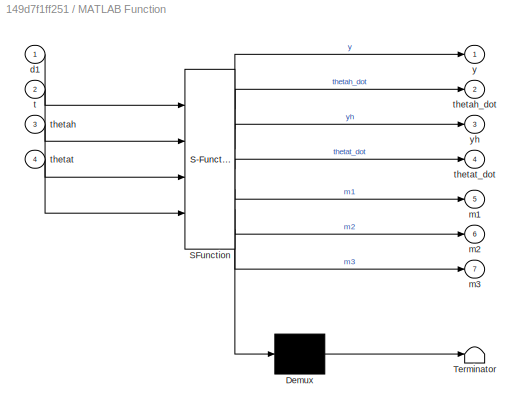
BLOCK [SubSystem] MATLAB Function
  ErrorFcn = Stateflow.Translate.translate
  PermitHierarchicalResolution = ExplicitOnly
  Ports = [4, 7]
  RequestExecContextInheritance = off
  SFBlockType = MATLAB Function
  TreatAsAtomicUnit = on
  Variant = off
BLOCK [Demux] MATLAB Function/ Demux 
  Outputs = 1
  Ports = [1, 1]
BLOCK [S-Function] MATLAB Function/ SFunction 
  EnableBusSupport = on
  FunctionName = sf_sfun
  PortCounts = [4 8]
  Ports = [4, 8]
  SFcnIsStateOwnerBlock = off
  SFunctionDeploymentMode = off
  Tag = Stateflow S-Function Transformer_example 2
BLOCK [Terminator] MATLAB Function/ Terminator 
BLOCK [Inport] MATLAB Function/d1
  IconDisplay = Port number
BLOCK [Outport] MATLAB Function/m1
  IconDisplay = Port number
  Port = 5
BLOCK [Outport] MATLAB Function/m2
  IconDisplay = Port number
  Port = 6
BLOCK [Outport] MATLAB Function/m3
  IconDisplay = Port number
  Port = 7
BLOCK [Inport] MATLAB Function/t
  IconDisplay = Port number
  Port = 2
BLOCK [Inport] MATLAB Function/thetah
  IconDisplay = Port number
  Port = 3
BLOCK [Outport] MATLAB Function/thetah_dot
  IconDisplay = Port number
  Port = 2
BLOCK [Inport] MATLAB Function/thetat
  IconDisplay = Port number
  Port = 4
BLOCK [Outport] MATLAB Function/thetat_dot
  IconDisplay = Port number
  Port = 4
BLOCK [Outport] MATLAB Function/y
  IconDisplay = Port number
BLOCK [Outport] MATLAB Function/yh
  IconDisplay = Port number
  Port = 3
BLOCK [Scope] Scope
  NumInputPorts = 1
  Ports = [1]
  ScopeSpecificationString = Simulink.scopes.TimeScopeBlockCfg('CurrentConfiguration', extmgr.ConfigurationSet(extmgr.Configuration('Core','General UI',true),extmgr.Configuration('Core','Source UI',true),extmgr.Configuration('Sources','WiredSimulink',true),extmgr.Configuration('Visuals','Time Domain',true,'SerializedDisplays',{struct('MinYLimReal','2.03565','MaxYLimReal','4.03565','YLabelReal','','MinYLimMag','2.03565','MaxYL...<+1335ch>
BLOCK [Scope] Scope2
  NumInputPorts = 2
  Ports = [2]
  ScopeSpecificationString = Simulink.scopes.TimeScopeBlockCfg('CurrentConfiguration', extmgr.ConfigurationSet(extmgr.Configuration('Core','General UI',true),extmgr.Configuration('Core','Source UI',true),extmgr.Configuration('Sources','WiredSimulink',true,'DataLoggingVariableName','ScopeData2'),extmgr.Configuration('Visuals','Time Domain',true,'SerializedDisplays',{struct('MinYLimReal','-33.125','MaxYLimReal','298.12497','YLa...<+1522ch>
BLOCK [Scope] Scope3
  NumInputPorts = 1
  Ports = [1]
  ScopeSpecificationString = Simulink.scopes.TimeScopeBlockCfg('CurrentConfiguration', extmgr.ConfigurationSet(extmgr.Configuration('Core','General UI',true),extmgr.Configuration('Core','Source UI',true),extmgr.Configuration('Sources','WiredSimulink',true,'DataLoggingVariableName','ScopeData3'),extmgr.Configuration('Visuals','Time Domain',true,'SerializedDisplays',{struct('MinYLimReal','-0.39449','MaxYLimReal','3.55037','YLab...<+1517ch>
BLOCK [Scope] Scope4
  NumInputPorts = 1
  Ports = [1]
  ScopeSpecificationString = Simulink.scopes.TimeScopeBlockCfg('CurrentConfiguration', extmgr.ConfigurationSet(extmgr.Configuration('Core','General UI',true),extmgr.Configuration('Core','Source UI',true),extmgr.Configuration('Sources','WiredSimulink',true,'DataLoggingVariableName','ScopeData4'),extmgr.Configuration('Visuals','Time Domain',true,'SerializedDisplays',{struct('MinYLimReal','0.75','MaxYLimReal','3.25','YLabelReal'...<+1348ch>
NET ..:1 -> MATLAB Function:3, Scope3:1
NET .:1 -> MATLAB Function:4, Scope4:1
LINE Band-Limited White Noise:1 -> MATLAB Function:1
LINE Clock:1 -> MATLAB Function:2
LINE DREM/Phi1/Add:1 -> DREM/Phi1/phi_t:1
LINE DREM/Phi1/Gain1:1 -> DREM/Phi1/Add:2
LINE DREM/Phi1/Gain2:1 -> DREM/Phi1/Add:3
LINE DREM/Phi1/Gain3:1 -> DREM/Phi1/Add:4
LINE DREM/Phi1/Gain4:1 -> DREM/Phi1/Add:5
LINE DREM/Phi1/Gain5:1 -> DREM/Phi1/Add:6
LINE DREM/Phi1/Gain:1 -> DREM/Phi1/Add:1
LINE DREM/Phi1/Product1:1 -> DREM/Phi1/Gain1:1
LINE DREM/Phi1/Product2:1 -> DREM/Phi1/Gain2:1
LINE DREM/Phi1/Product3:1 -> DREM/Phi1/Gain3:1
LINE DREM/Phi1/Product4:1 -> DREM/Phi1/Gain4:1
LINE DREM/Phi1/Product5:1 -> DREM/Phi1/Gain5:1
LINE DREM/Phi1/Product:1 -> DREM/Phi1/Gain:1
NET DREM/Phi1/m11:1 -> DREM/Phi1/Product2:2, DREM/Phi1/Product4:2
NET DREM/Phi1/m12:1 -> DREM/Phi1/Product5:2, DREM/Phi1/Product:2
NET DREM/Phi1/m13:1 -> DREM/Phi1/Product1:2, DREM/Phi1/Product3:2
NET DREM/Phi1/m1:1 -> DREM/Phi1/Product1:1, DREM/Phi1/Product:1
NET DREM/Phi1/m21:1 -> DREM/Phi1/Product3:3, DREM/Phi1/Product5:3
NET DREM/Phi1/m22:1 -> DREM/Phi1/Product1:3, DREM/Phi1/Product4:3
NET DREM/Phi1/m23:1 -> DREM/Phi1/Product2:3, DREM/Phi1/Product:3
NET DREM/Phi1/m2:1 -> DREM/Phi1/Product2:1, DREM/Phi1/Product3:1
NET DREM/Phi1/m3:1 -> DREM/Phi1/Product4:1, DREM/Phi1/Product5:1
NET DREM/Phi1:1 -> DREM/Theta_1:2, DREM/Theta_2:2, DREM/Theta_3:2
NET DREM/Tau:1 -> DREM/Theta_1:3, DREM/Theta_2:3, DREM/Theta_3:3
LINE DREM/Theta_1/Gain1:1 -> DREM/Theta_1/Product5:2
NET DREM/Theta_1/I1:1 -> DREM/Theta_1/Product5:3, DREM/Theta_1/Theta_1_cap:1
NET DREM/Theta_1/I2:1 -> DREM/Theta_1/Product1:2, DREM/Theta_1/Theta_1_hat:1
LINE DREM/Theta_1/Product1:1 -> DREM/Theta_1/Ye1-phi.theta_1_hat:2
LINE DREM/Theta_1/Product2:1 -> DREM/Theta_1/I2:1
LINE DREM/Theta_1/Product3:1 -> DREM/Theta_1/Product2:2
LINE DREM/Theta_1/Product4:1 -> DREM/Theta_1/Product5:1
LINE DREM/Theta_1/Product5:1 -> DREM/Theta_1/I1:1
NET DREM/Theta_1/Tau:1 -> DREM/Theta_1/Gain1:1, DREM/Theta_1/Product3:2
LINE DREM/Theta_1/Ye1-phi.theta_1_hat:1 -> DREM/Theta_1/Product2:1
LINE DREM/Theta_1/Ye1:1 -> DREM/Theta_1/Ye1-phi.theta_1_hat:1
NET DREM/Theta_1/phi:1 -> DREM/Theta_1/Product1:1, DREM/Theta_1/Product3:1, DREM/Theta_1/Product4:1, DREM/Theta_1/Product4:2, DREM/Theta_1/Scope:1
NET DREM/Theta_1:1 -> DREM/Scope6:1, DREM/Scope7:1
NET DREM/Theta_1:2 -> DREM/Scope1:1, DREM/Scope:1
LINE DREM/Theta_2/Gain1:1 -> DREM/Theta_2/Product5:2
NET DREM/Theta_2/I1:1 -> DREM/Theta_2/Product5:3, DREM/Theta_2/Theta_2_cap:1
NET DREM/Theta_2/I2:1 -> DREM/Theta_2/Product1:2, DREM/Theta_2/Theta_2_hat:1
LINE DREM/Theta_2/Product1:1 -> DREM/Theta_2/Ye1-phi.1theta_2_hat:2
LINE DREM/Theta_2/Product2:1 -> DREM/Theta_2/I2:1
LINE DREM/Theta_2/Product3:1 -> DREM/Theta_2/Product2:2
LINE DREM/Theta_2/Product4:1 -> DREM/Theta_2/Product5:1
LINE DREM/Theta_2/Product5:1 -> DREM/Theta_2/I1:1
NET DREM/Theta_2/Tau:1 -> DREM/Theta_2/Gain1:1, DREM/Theta_2/Product3:2
LINE DREM/Theta_2/Ye1-phi.1theta_2_hat:1 -> DREM/Theta_2/Product2:1
LINE DREM/Theta_2/Ye2:1 -> DREM/Theta_2/Ye1-phi.1theta_2_hat:1
NET DREM/Theta_2/phi:1 -> DREM/Theta_2/Product1:1, DREM/Theta_2/Product3:1, DREM/Theta_2/Product4:1, DREM/Theta_2/Product4:2
NET DREM/Theta_2:1 -> DREM/Scope5:1, DREM/Scope7:2
NET DREM/Theta_2:2 -> DREM/Scope2:1, DREM/Scope:2
LINE DREM/Theta_3/Gain1:1 -> DREM/Theta_3/Product5:2
NET DREM/Theta_3/I1:1 -> DREM/Theta_3/Product1:2, DREM/Theta_3/Theta_3_hat:1
NET DREM/Theta_3/I2:1 -> DREM/Theta_3/Product5:3, DREM/Theta_3/Theta_3_cap:1
LINE DREM/Theta_3/Product1:1 -> DREM/Theta_3/Ye3-phi.Wr  _hat:2
LINE DREM/Theta_3/Product2:1 -> DREM/Theta_3/I1:1
LINE DREM/Theta_3/Product3:1 -> DREM/Theta_3/Product2:2
LINE DREM/Theta_3/Product4:1 -> DREM/Theta_3/Product5:1
LINE DREM/Theta_3/Product5:1 -> DREM/Theta_3/I2:1
NET DREM/Theta_3/Tau:1 -> DREM/Theta_3/Gain1:1, DREM/Theta_3/Product3:2
LINE DREM/Theta_3/Ye3-phi.Wr  _hat:1 -> DREM/Theta_3/Product2:1
LINE DREM/Theta_3/Ye3:1 -> DREM/Theta_3/Ye3-phi.Wr  _hat:1
NET DREM/Theta_3/phi:1 -> DREM/Theta_3/Product1:1, DREM/Theta_3/Product3:1, DREM/Theta_3/Product4:1, DREM/Theta_3/Product4:2
NET DREM/Theta_3:1 -> DREM/Scope4:1, DREM/Scope7:3
NET DREM/Theta_3:2 -> DREM/Scope3:1, DREM/Scope:3
LINE DREM/Transfer Fcn1:1 -> DREM/m12:1
LINE DREM/Transfer Fcn2:1 -> DREM/m11:1
LINE DREM/Transfer Fcn3:1 -> DREM/g11:1
LINE DREM/Transfer Fcn4:1 -> DREM/g21:1
LINE DREM/Transfer Fcn5:1 -> DREM/m21:1
LINE DREM/Transfer Fcn6:1 -> DREM/m22:1
LINE DREM/Transfer Fcn7:1 -> DREM/m23:1
LINE DREM/Transfer Fcn:1 -> DREM/m13:1
NET DREM/X1:1 -> DREM/Transfer Fcn7:1, DREM/Transfer Fcn:1, DREM/m3:1
NET DREM/X2:1 -> DREM/Transfer Fcn1:1, DREM/Transfer Fcn6:1, DREM/m2:1
LINE DREM/Ye1_bar/Add1:1 -> DREM/Ye1_bar/Product4:2
LINE DREM/Ye1_bar/Add2:1 -> DREM/Ye1_bar/Ye1_bar:1
LINE DREM/Ye1_bar/Add3:1 -> DREM/Ye1_bar/Product7:2
LINE DREM/Ye1_bar/Add4:1 -> DREM/Ye1_bar/Product10:2
LINE DREM/Ye1_bar/Product10:1 -> DREM/Ye1_bar/Add2:3
LINE DREM/Ye1_bar/Product2:1 -> DREM/Ye1_bar/Add1:1
LINE DREM/Ye1_bar/Product3:1 -> DREM/Ye1_bar/Add1:2
LINE DREM/Ye1_bar/Product4:1 -> DREM/Ye1_bar/Add2:1
LINE DREM/Ye1_bar/Product5:1 -> DREM/Ye1_bar/Add3:1
LINE DREM/Ye1_bar/Product6:1 -> DREM/Ye1_bar/Add3:2
LINE DREM/Ye1_bar/Product7:1 -> DREM/Ye1_bar/Add2:2
LINE DREM/Ye1_bar/Product8:1 -> DREM/Ye1_bar/Add4:1
LINE DREM/Ye1_bar/Product9:1 -> DREM/Ye1_bar/Add4:2
LINE DREM/Ye1_bar/g11:1 -> DREM/Ye1_bar/Product7:1
LINE DREM/Ye1_bar/g1:1 -> DREM/Ye1_bar/Product10:1
LINE DREM/Ye1_bar/g21:1 -> DREM/Ye1_bar/Product4:1
NET DREM/Ye1_bar/m12:1 -> DREM/Ye1_bar/Product3:2, DREM/Ye1_bar/Product8:1
NET DREM/Ye1_bar/m13:1 -> DREM/Ye1_bar/Product2:2, DREM/Ye1_bar/Product9:1
NET DREM/Ye1_bar/m22:1 -> DREM/Ye1_bar/Product6:2, DREM/Ye1_bar/Product9:2
NET DREM/Ye1_bar/m23:1 -> DREM/Ye1_bar/Product5:2, DREM/Ye1_bar/Product8:2
NET DREM/Ye1_bar/m2:1 -> DREM/Ye1_bar/Product2:1, DREM/Ye1_bar/Product5:1
NET DREM/Ye1_bar/m3:1 -> DREM/Ye1_bar/Product3:1, DREM/Ye1_bar/Product6:1
LINE DREM/Ye1_bar:1 -> DREM/Theta_1:1
LINE DREM/Ye2_bar/Add1:1 -> DREM/Ye2_bar/Product4:2
LINE DREM/Ye2_bar/Add2:1 -> DREM/Ye2_bar/Ye2_bar:1
LINE DREM/Ye2_bar/Add3:1 -> DREM/Ye2_bar/Product7:2
LINE DREM/Ye2_bar/Add4:1 -> DREM/Ye2_bar/Product10:2
LINE DREM/Ye2_bar/Product10:1 -> DREM/Ye2_bar/Add2:3
LINE DREM/Ye2_bar/Product2:1 -> DREM/Ye2_bar/Add1:1
LINE DREM/Ye2_bar/Product3:1 -> DREM/Ye2_bar/Add1:2
LINE DREM/Ye2_bar/Product4:1 -> DREM/Ye2_bar/Add2:1
LINE DREM/Ye2_bar/Product5:1 -> DREM/Ye2_bar/Add3:1
LINE DREM/Ye2_bar/Product6:1 -> DREM/Ye2_bar/Add3:2
LINE DREM/Ye2_bar/Product7:1 -> DREM/Ye2_bar/Add2:2
LINE DREM/Ye2_bar/Product8:1 -> DREM/Ye2_bar/Add4:1
LINE DREM/Ye2_bar/Product9:1 -> DREM/Ye2_bar/Add4:2
LINE DREM/Ye2_bar/g11:1 -> DREM/Ye2_bar/Product7:1
LINE DREM/Ye2_bar/g1:1 -> DREM/Ye2_bar/Product10:1
LINE DREM/Ye2_bar/g21:1 -> DREM/Ye2_bar/Product4:1
NET DREM/Ye2_bar/m11:1 -> DREM/Ye2_bar/Product2:2, DREM/Ye2_bar/Product9:1
NET DREM/Ye2_bar/m13:1 -> DREM/Ye2_bar/Product3:2, DREM/Ye2_bar/Product8:1
NET DREM/Ye2_bar/m1:1 -> DREM/Ye2_bar/Product3:1, DREM/Ye2_bar/Product5:1
NET DREM/Ye2_bar/m21:1 -> DREM/Ye2_bar/Product6:2, DREM/Ye2_bar/Product8:2
NET DREM/Ye2_bar/m23:1 -> DREM/Ye2_bar/Product5:2, DREM/Ye2_bar/Product9:2
NET DREM/Ye2_bar/m3:1 -> DREM/Ye2_bar/Product2:1, DREM/Ye2_bar/Product6:1
LINE DREM/Ye2_bar:1 -> DREM/Theta_2:1
LINE DREM/Ye3_bar /Add1:1 -> DREM/Ye3_bar /Product4:2
LINE DREM/Ye3_bar /Add2:1 -> DREM/Ye3_bar /Ye3_bar:1
LINE DREM/Ye3_bar /Add3:1 -> DREM/Ye3_bar /Product7:2
LINE DREM/Ye3_bar /Add4:1 -> DREM/Ye3_bar /Product10:2
LINE DREM/Ye3_bar /Product10:1 -> DREM/Ye3_bar /Add2:3
LINE DREM/Ye3_bar /Product2:1 -> DREM/Ye3_bar /Add1:1
LINE DREM/Ye3_bar /Product3:1 -> DREM/Ye3_bar /Add1:2
LINE DREM/Ye3_bar /Product4:1 -> DREM/Ye3_bar /Add2:1
LINE DREM/Ye3_bar /Product5:1 -> DREM/Ye3_bar /Add3:1
LINE DREM/Ye3_bar /Product6:1 -> DREM/Ye3_bar /Add3:2
LINE DREM/Ye3_bar /Product7:1 -> DREM/Ye3_bar /Add2:2
LINE DREM/Ye3_bar /Product8:1 -> DREM/Ye3_bar /Add4:1
LINE DREM/Ye3_bar /Product9:1 -> DREM/Ye3_bar /Add4:2
LINE DREM/Ye3_bar /g11:1 -> DREM/Ye3_bar /Product7:1
LINE DREM/Ye3_bar /g1:1 -> DREM/Ye3_bar /Product10:1
LINE DREM/Ye3_bar /g21:1 -> DREM/Ye3_bar /Product4:1
NET DREM/Ye3_bar /m11:1 -> DREM/Ye3_bar /Product3:2, DREM/Ye3_bar /Product8:1
NET DREM/Ye3_bar /m12:1 -> DREM/Ye3_bar /Product2:2, DREM/Ye3_bar /Product9:1
NET DREM/Ye3_bar /m1:1 -> DREM/Ye3_bar /Product2:1, DREM/Ye3_bar /Product6:1
NET DREM/Ye3_bar /m21:1 -> DREM/Ye3_bar /Product5:2, DREM/Ye3_bar /Product9:2
NET DREM/Ye3_bar /m22:1 -> DREM/Ye3_bar /Product6:2, DREM/Ye3_bar /Product8:2
NET DREM/Ye3_bar /m2:1 -> DREM/Ye3_bar /Product3:1, DREM/Ye3_bar /Product5:1
LINE DREM/Ye3_bar :1 -> DREM/Theta_3:1
NET DREM/g11:1 -> DREM/Ye1_bar:2, DREM/Ye2_bar:2, DREM/Ye3_bar :2
NET DREM/g1:1 -> DREM/Ye1_bar:1, DREM/Ye2_bar:1, DREM/Ye3_bar :1
NET DREM/g21:1 -> DREM/Ye1_bar:3, DREM/Ye2_bar:3, DREM/Ye3_bar :3
NET DREM/m11:1 -> DREM/Phi1:2, DREM/Ye2_bar:5, DREM/Ye3_bar :5
NET DREM/m12:1 -> DREM/Phi1:5, DREM/Ye1_bar:5, DREM/Ye3_bar :8
NET DREM/m13:1 -> DREM/Phi1:8, DREM/Ye1_bar:8, DREM/Ye2_bar:8
NET DREM/m1:1 -> DREM/Phi1:1, DREM/Ye2_bar:4, DREM/Ye3_bar :4
NET DREM/m21:1 -> DREM/Phi1:3, DREM/Ye2_bar:6, DREM/Ye3_bar :6
NET DREM/m22:1 -> DREM/Phi1:6, DREM/Ye1_bar:6, DREM/Ye3_bar :9
NET DREM/m23:1 -> DREM/Phi1:9, DREM/Ye1_bar:9, DREM/Ye2_bar:9
NET DREM/m2:1 -> DREM/Phi1:4, DREM/Ye1_bar:4, DREM/Ye3_bar :7
NET DREM/m3:1 -> DREM/Phi1:7, DREM/Ye1_bar:7, DREM/Ye2_bar:7
NET DREM/x3:1 -> DREM/Transfer Fcn2:1, DREM/Transfer Fcn5:1, DREM/m1:1
NET DREM/y:1 -> DREM/Transfer Fcn3:1, DREM/Transfer Fcn4:1, DREM/g1:1
LINE DREM2/.1:1 -> DREM2/M1._bar:1
LINE DREM2/.2:1 -> DREM2/G_bar:1
LINE DREM2/.3:1 -> DREM2/M2_bar:1
NET DREM2/G:1 -> DREM2/.2:1, DREM2/Ye1:1, DREM2/Ye2:1
NET DREM2/G_bar:1 -> DREM2/Ye1:3, DREM2/Ye2:3
NET DREM2/M1._bar:1 -> DREM2/Phi:4, DREM2/Ye1:4
NET DREM2/M2_bar:1 -> DREM2/Phi:3, DREM2/Ye2:4
LINE DREM2/Phi/Add:1 -> DREM2/Phi/phi_t:1
LINE DREM2/Phi/M1:1 -> DREM2/Phi/Product:1
LINE DREM2/Phi/M1_bar:1 -> DREM2/Phi/Product1:2
LINE DREM2/Phi/M2:1 -> DREM2/Phi/Product1:1
LINE DREM2/Phi/M2_bar:1 -> DREM2/Phi/Product:2
LINE DREM2/Phi/Product1:1 -> DREM2/Phi/Add:2
LINE DREM2/Phi/Product:1 -> DREM2/Phi/Add:1
NET DREM2/Phi:1 -> DREM2/Rr1:2, DREM2/Rr:2
LINE DREM2/Rr/Gain1:1 -> DREM2/Rr/Product5:2
NET DREM2/Rr/I1:1 -> DREM2/Rr/Product5:3, DREM2/Rr/Rs_cap:1
NET DREM2/Rr/I2:1 -> DREM2/Rr/Product1:2, DREM2/Rr/Rs_hat:1
LINE DREM2/Rr/Product1:1 -> DREM2/Rr/Ye1-phi.Rs_hat:2
LINE DREM2/Rr/Product2:1 -> DREM2/Rr/I2:1
LINE DREM2/Rr/Product3:1 -> DREM2/Rr/Product2:2
LINE DREM2/Rr/Product4:1 -> DREM2/Rr/Product5:1
LINE DREM2/Rr/Product5:1 -> DREM2/Rr/I1:1
NET DREM2/Rr/Tau:1 -> DREM2/Rr/Gain1:1, DREM2/Rr/Product3:2
LINE DREM2/Rr/Ye1-phi.Rs_hat:1 -> DREM2/Rr/Product2:1
LINE DREM2/Rr/Ye1:1 -> DREM2/Rr/Ye1-phi.Rs_hat:1
NET DREM2/Rr/phi:1 -> DREM2/Rr/Product1:1, DREM2/Rr/Product3:1, DREM2/Rr/Product4:1, DREM2/Rr/Product4:2
LINE DREM2/Rr1/Gain1:1 -> DREM2/Rr1/Product5:2
NET DREM2/Rr1/I1:1 -> DREM2/Rr1/Product1:2, DREM2/Rr1/Rr_hat:1
NET DREM2/Rr1/I2:1 -> DREM2/Rr1/Product5:3, DREM2/Rr1/Rr_cap:1
LINE DREM2/Rr1/Product1:1 -> DREM2/Rr1/Ye1-phi.Rr _hat:2
LINE DREM2/Rr1/Product2:1 -> DREM2/Rr1/I1:1
LINE DREM2/Rr1/Product3:1 -> DREM2/Rr1/Product2:2
LINE DREM2/Rr1/Product4:1 -> DREM2/Rr1/Product5:1
LINE DREM2/Rr1/Product5:1 -> DREM2/Rr1/I2:1
NET DREM2/Rr1/Tau:1 -> DREM2/Rr1/Gain1:1, DREM2/Rr1/Product3:2
LINE DREM2/Rr1/Ye1-phi.Rr _hat:1 -> DREM2/Rr1/Product2:1
LINE DREM2/Rr1/Ye2:1 -> DREM2/Rr1/Ye1-phi.Rr _hat:1
NET DREM2/Rr1/phi:1 -> DREM2/Rr1/Product1:1, DREM2/Rr1/Product3:1, DREM2/Rr1/Product4:1, DREM2/Rr1/Product4:2
NET DREM2/Rr1:1 -> DREM2/Scope3:1, DREM2/Scope5:1, DREM2/thetah_1:1
NET DREM2/Rr1:2 -> DREM2/Scope1:1, DREM2/Scope3:2, DREM2/Scope5:2, DREM2/thetath_1:1
NET DREM2/Rr:1 -> DREM2/Scope2:1, DREM2/Scope5:3, DREM2/Scope6:1, DREM2/thetah_2:1
NET DREM2/Rr:2 -> DREM2/Scope4:1, DREM2/Scope5:4, DREM2/Scope6:2, DREM2/thetath_2:1
NET DREM2/Tau:1 -> DREM2/Rr1:3, DREM2/Rr:3
LINE DREM2/Y:1 -> DREM2/G:1
LINE DREM2/Ye1/Add:1 -> DREM2/Ye1/Ye1:1
LINE DREM2/Ye1/G:1 -> DREM2/Ye1/Product:1
LINE DREM2/Ye1/G_bar:1 -> DREM2/Ye1/Product1:2
LINE DREM2/Ye1/M2:1 -> DREM2/Ye1/Product1:1
LINE DREM2/Ye1/M2_bar:1 -> DREM2/Ye1/Product:2
LINE DREM2/Ye1/Product1:1 -> DREM2/Ye1/Add:2
LINE DREM2/Ye1/Product:1 -> DREM2/Ye1/Add:1
LINE DREM2/Ye1:1 -> DREM2/Rr1:1
LINE DREM2/Ye2/Add:1 -> DREM2/Ye2/Ye2:1
LINE DREM2/Ye2/G:1 -> DREM2/Ye2/Product:1
LINE DREM2/Ye2/G_bar:1 -> DREM2/Ye2/Product1:2
LINE DREM2/Ye2/Gain:1 -> DREM2/Ye2/Add:1
LINE DREM2/Ye2/M1:1 -> DREM2/Ye2/Product1:1
LINE DREM2/Ye2/M1_bar :1 -> DREM2/Ye2/Product:2
LINE DREM2/Ye2/Product1:1 -> DREM2/Ye2/Add:2
LINE DREM2/Ye2/Product:1 -> DREM2/Ye2/Gain:1
LINE DREM2/Ye2:1 -> DREM2/Rr:1
NET DREM2/m1.:1 -> DREM2/.3:1, DREM2/Phi:1, DREM2/Ye2:2
NET DREM2/m2.:1 -> DREM2/.1:1, DREM2/Phi:2, DREM2/Ye1:2
NET MATLAB Function:1 -> DREM:4, Scope2:1, Scope:1
LINE MATLAB Function:2 -> ..:1
LINE MATLAB Function:3 -> Scope2:2
LINE MATLAB Function:4 -> .:1
LINE MATLAB Function:5 -> DREM:1
LINE MATLAB Function:6 -> DREM:2
LINE MATLAB Function:7 -> DREM:3
note: NET lines group one-source signal fan-out (src -> all destinations, sorted); 1:1 wires keep LINE
CHART MATLAB Function states=1 transitions=1
  STATE_LABEL 'eML_blk_kernel()'
  STATE_LABEL "SCRIPT:\nfunction [y,thetah_dot, yh,  thetat_dot , m1, m2,m3]= fcn(d1,t, thetah, thetat)\nM=[d1; sin(t); 1 ];%Regressor\ntheta=[1;2;3];%Parameter\ny = M'*theta;\ntau=[1 0 0; 0 1 0; 0 0 1];\nthetah_dot=tau*M*(y-M'*thetah);%gradient Estimator\nthetat_dot=-tau*M*M'*thetat;\nm1=d1;\nm2=sin(t);\nm3=1;\nyh=M'*thetah;\n\n"
